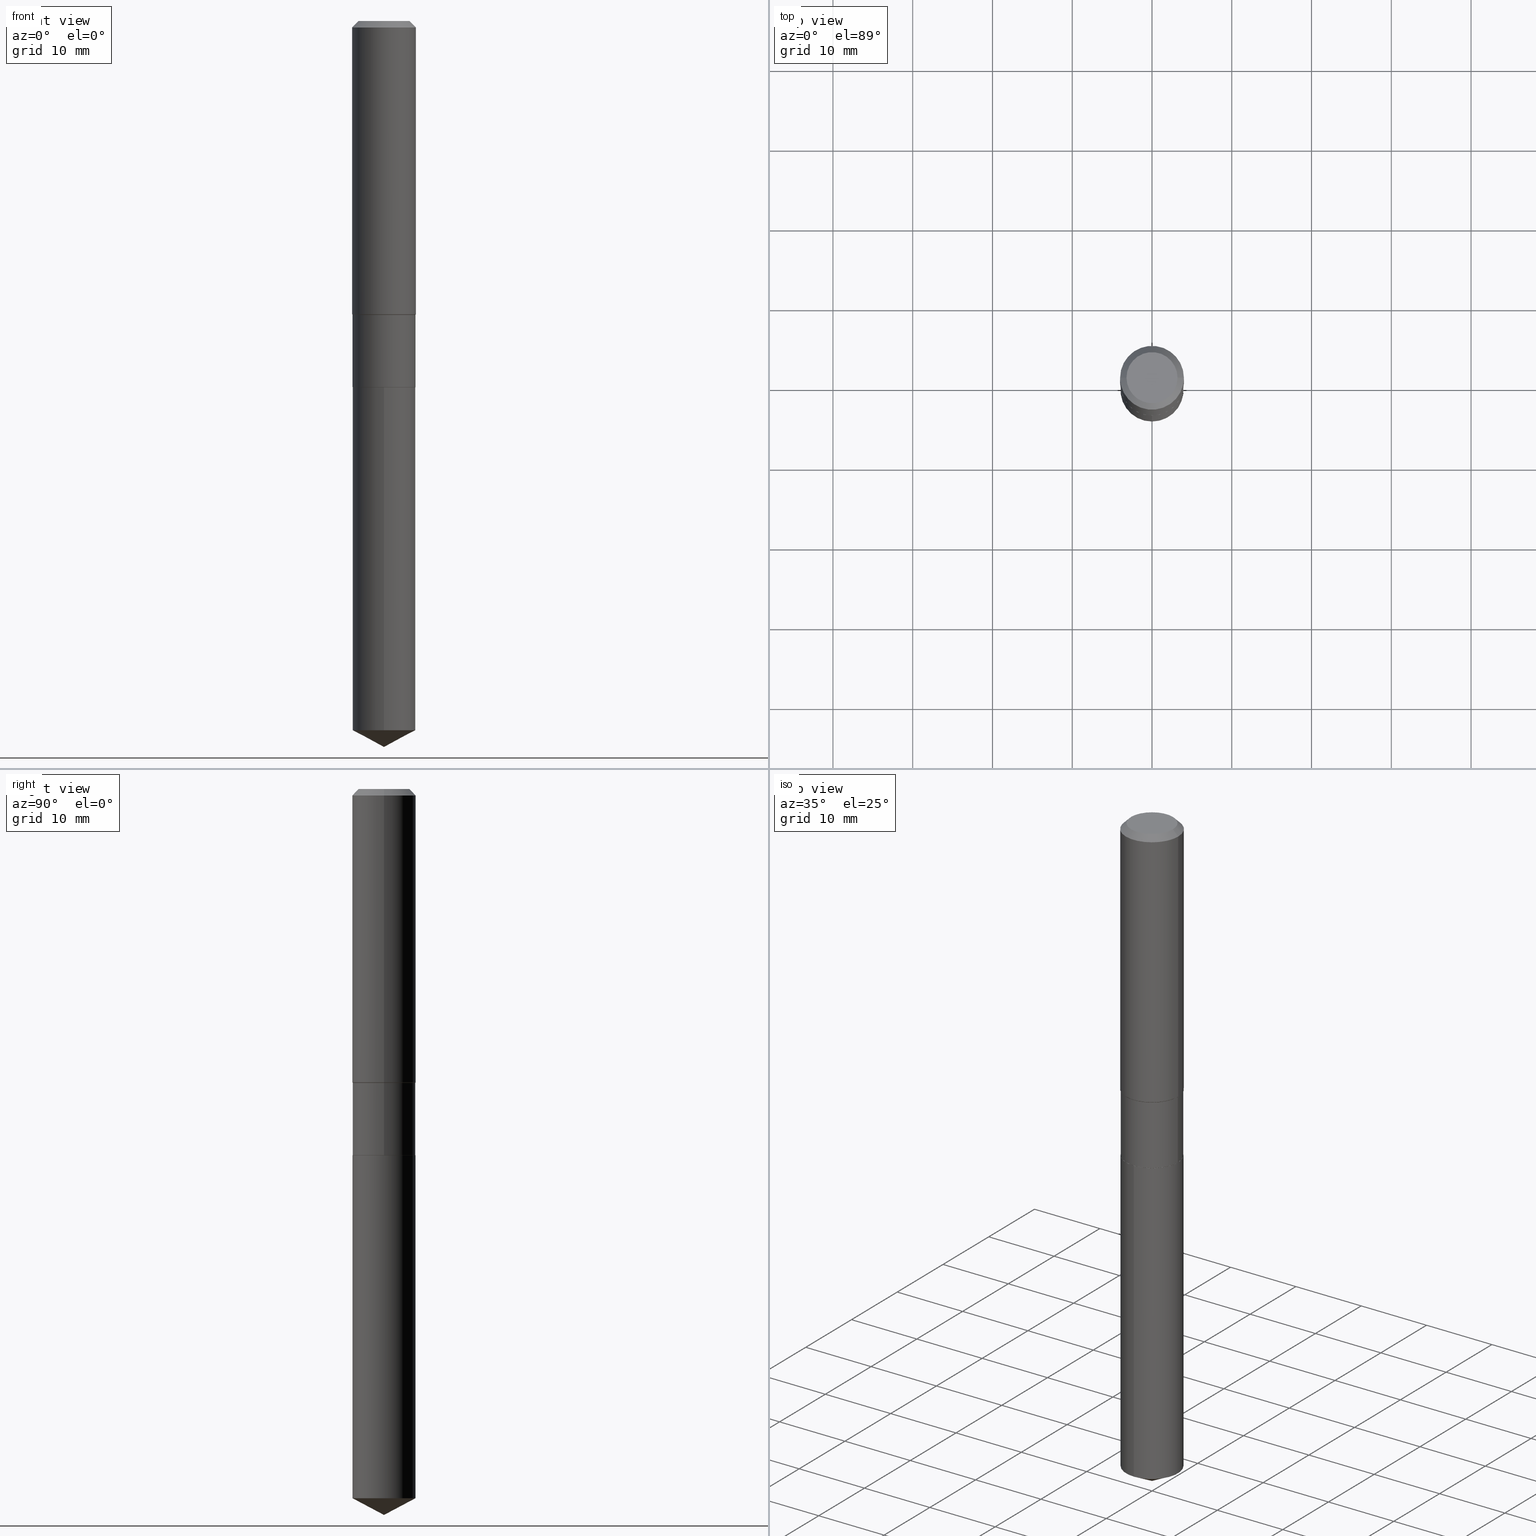
[diagram: canonical four-view strip — front | top / right | iso, engineering-drawing reading convention]
A machine part, canonical four-view strip (front | top / right | iso — engineering-drawing reading convention). The complete STEP part file that produces these views, byte-faithful:
ISO-10303-21;
HEADER;
FILE_DESCRIPTION (( 'STEP AP203' ),
    '1' );
FILE_NAME ('65209.STEP',
    '2024-04-24T21:25:03',
    ( '' ),
    ( '' ),
    'SwSTEP 2.0',
    'SolidWorks 2023',
    '' );
FILE_SCHEMA (( 'CONFIG_CONTROL_DESIGN' ));
ENDSEC;

DATA;
#1 = MANIFOLD_SOLID_BREP ( 'Body-Move/Copy2[1]', #215 ) ;
#2 = APPROVAL_DATE_TIME ( #241, #367 ) ;
#3 = DIRECTION ( 'NONE',  ( 1.000000000000000000, -6.982962677686268288E-15, 4.876176775795936353E-29 ) ) ;
#4 = CIRCLE ( 'NONE', #63, 0.1554999999999999993 ) ;
#5 = SECURITY_CLASSIFICATION ( '', '', #118 ) ;
#6 = VERTEX_POINT ( 'NONE', #337 ) ;
#7 = DIRECTION ( 'NONE',  ( -2.445468806185136597E-29, 3.491481338843145583E-15, 1.000000000000000000 ) ) ;
#8 = EDGE_CURVE ( 'NONE', #34, #35, #293, .T. ) ;
#9 = APPROVAL_STATUS ( 'not_yet_approved' ) ;
#10 = PLANE ( 'NONE',  #364 ) ;
#11 = DIRECTION ( 'NONE',  ( -2.445434489770321491E-29, 3.491530481902329465E-15, 1.000000000000000000 ) ) ;
#12 = DIRECTION ( 'NONE',  ( -6.982962677686267499E-15, -1.000000000000000000, 3.541896320645578618E-15 ) ) ;
#13 = DIRECTION ( 'NONE',  ( -0.7071067811865595631, 7.493145998870398336E-15, 0.7071067811865354713 ) ) ;
#14 = CIRCLE ( 'NONE', #283, 0.1575000000000001676 ) ;
#15 = DATE_AND_TIME ( #388, #252 ) ;
#16 = CARTESIAN_POINT ( 'NONE',  ( -1.085850696380170092E-15, -0.1555000000000062998, -1.807099999999999707 ) ) ;
#17 = DIRECTION ( 'NONE',  ( -2.445434489770321491E-29, 3.491530481902329860E-15, 1.000000000000000000 ) ) ;
#18 = CARTESIAN_POINT ( 'NONE',  ( 0.000000000000000000, 0.000000000000000000, 0.000000000000000000 ) ) ;
#19 = DIRECTION ( 'NONE',  ( -6.982962677686265133E-15, -1.000000000000000000, 3.513630860018345064E-15 ) ) ;
#20 = DIRECTION ( 'NONE',  ( -2.445468806185136597E-29, 3.491481338843145583E-15, 1.000000000000000000 ) ) ;
#21 = CARTESIAN_POINT ( 'NONE',  ( 0.1575000000000000011, -1.190510096822576026E-15, -0.03150000000000019451 ) ) ;
#22 = DIRECTION ( 'NONE',  ( -2.445468806185136597E-29, 3.491481338843145583E-15, 1.000000000000000000 ) ) ;
#23 = CYLINDRICAL_SURFACE ( 'NONE', #138, 0.1554999999999999993 ) ;
#24 = VECTOR ( 'NONE', #320, 39.37007874015748854 ) ;
#25 = CC_DESIGN_APPROVAL ( #351, ( #392 ) ) ;
#26 = DIRECTION ( 'NONE',  ( -2.445468806185136597E-29, 3.491481338843145583E-15, 1.000000000000000000 ) ) ;
#27 = ORIENTED_EDGE ( 'NONE', *, *, #166, .T. ) ;
#28 = EDGE_LOOP ( 'NONE', ( #179, #408, #439, #221 ) ) ;
#29 = DIRECTION ( 'NONE',  ( -2.445468806185136597E-29, 3.491481338843145583E-15, 1.000000000000000000 ) ) ;
#30 = AXIS2_PLACEMENT_3D ( 'NONE', #468, #275, #213 ) ;
#31 = VECTOR ( 'NONE', #309, 39.37007874015748143 ) ;
#32 = ORIENTED_EDGE ( 'NONE', *, *, #329, .T. ) ;
#33 = ADVANCED_FACE ( 'NONE', ( #264 ), #10, .F. ) ;
#34 = VERTEX_POINT ( 'NONE', #456 ) ;
#35 = VERTEX_POINT ( 'NONE', #410 ) ;
#36 = DIRECTION ( 'NONE',  ( -2.445468806185136597E-29, 3.491481338843145583E-15, 1.000000000000000000 ) ) ;
#37 = AXIS2_PLACEMENT_3D ( 'NONE', #76, #79, #82 ) ;
#38 = DIRECTION ( 'NONE',  ( 2.438088387897960049E-29, -3.491481338843145188E-15, -1.000000000000000000 ) ) ;
#39 = ADVANCED_FACE ( 'NONE', ( #262 ), #300, .T. ) ;
#40 = MECHANICAL_CONTEXT ( 'NONE', #401, 'mechanical' ) ;
#41 = ORIENTED_EDGE ( 'NONE', *, *, #111, .T. ) ;
#42 = EDGE_LOOP ( 'NONE', ( #87, #107 ) ) ;
#43 = COORDINATED_UNIVERSAL_TIME_OFFSET ( 5, 0, .BEHIND. ) ;
#44 = EDGE_CURVE ( 'NONE', #35, #482, #189, .T. ) ;
#45 = ORIENTED_EDGE ( 'NONE', *, *, #248, .T. ) ;
#46 = CLOSED_SHELL ( 'NONE', ( #70, #298, #136, #93, #39, #291, #403, #321, #471, #33, #232, #83 ) ) ;
#47 = CARTESIAN_POINT ( 'NONE',  ( 7.703226739483226971E-31, -1.099816621735597538E-16, -0.03150000000000019451 ) ) ;
#48 = CONICAL_SURFACE ( 'NONE', #211, 0.1575000000000000011, 0.7853981633974450594 ) ;
#49 = PERSON_AND_ORGANIZATION ( #296, #98 ) ;
#50 = ORIENTED_EDGE ( 'NONE', *, *, #448, .F. ) ;
#51 = CARTESIAN_POINT ( 'NONE',  ( -0.1554999999999999438, -4.579237665529685647E-15, -1.449399999999999800 ) ) ;
#52 = CARTESIAN_POINT ( 'NONE',  ( 0.000000000000000000, 0.000000000000000000, 0.000000000000000000 ) ) ;
#53 = CARTESIAN_POINT ( 'NONE',  ( 1.104893954107041376E-15, 0.1554999999999877869, -3.500019183376640530 ) ) ;
#54 = PERSON_AND_ORGANIZATION_ROLE ( 'design_supplier' ) ;
#55 = LINE ( 'NONE', #478, #475 ) ;
#56 = DIRECTION ( 'NONE',  ( -6.982962677686267499E-15, -1.000000000000000000, 3.541896320645578618E-15 ) ) ;
#57 = AXIS2_PLACEMENT_3D ( 'NONE', #246, #17, #56 ) ;
#58 = APPROVAL_PERSON_ORGANIZATION ( #161, #460, #260 ) ;
#59 = PLANE ( 'NONE',  #419 ) ;
#60 = CARTESIAN_POINT ( 'NONE',  ( -0.1575000000000001676, -3.934465281019408143E-15, -1.447399999999999798 ) ) ;
#61 = DIRECTION ( 'NONE',  ( 1.000000000000000000, -6.982962677686266711E-15, 0.000000000000000000 ) ) ;
#62 = PRODUCT_DEFINITION ( 'UNKNOWN', '', #392, #487 ) ;
#63 = AXIS2_PLACEMENT_3D ( 'NONE', #306, #67, #61 ) ;
#64 = EDGE_LOOP ( 'NONE', ( #110, #27, #435, #405 ) ) ;
#65 = DIRECTION ( 'NONE',  ( 1.000000000000000000, -6.982962677686268288E-15, 4.876176775795936353E-29 ) ) ;
#66 = ORIENTED_EDGE ( 'NONE', *, *, #395, .T. ) ;
#67 = DIRECTION ( 'NONE',  ( -2.445468806185136597E-29, 3.491481338843145583E-15, 1.000000000000000000 ) ) ;
#68 = APPLICATION_PROTOCOL_DEFINITION ( 'international standard', 'config_control_design', 1994, #401 ) ;
#69 = EDGE_LOOP ( 'NONE', ( #332, #41, #162, #74 ) ) ;
#70 = ADVANCED_FACE ( 'NONE', ( #198 ), #314, .T. ) ;
#71 = CARTESIAN_POINT ( 'NONE',  ( 4.419206679657160853E-29, -6.309455927423449056E-15, -1.807100000000000151 ) ) ;
#72 = AXIS2_PLACEMENT_3D ( 'NONE', #437, #113, #259 ) ;
#73 = VERTEX_POINT ( 'NONE', #226 ) ;
#74 = ORIENTED_EDGE ( 'NONE', *, *, #148, .F. ) ;
#75 = EDGE_CURVE ( 'NONE', #157, #473, #370, .T. ) ;
#76 = CARTESIAN_POINT ( 'NONE',  ( 4.419206679657160853E-29, -6.309455927423449056E-15, -1.807100000000000151 ) ) ;
#77 = PRODUCT_DEFINITION_SHAPE ( 'NONE', 'NONE',  #62 ) ;
#78 = ADVANCED_BREP_SHAPE_REPRESENTATION ( '65209', ( #1, #481, #224 ), #151 ) ;
#79 = DIRECTION ( 'NONE',  ( -2.445468806185136597E-29, 3.491481338843145583E-15, 1.000000000000000000 ) ) ;
#80 = CIRCLE ( 'NONE', #278, 0.1554999999999999438 ) ;
#81 = SHAPE_DEFINITION_REPRESENTATION ( #77, #78 ) ;
#82 = DIRECTION ( 'NONE',  ( 1.000000000000000000, -6.982962677686263555E-15, 0.000000000000000000 ) ) ;
#83 = ADVANCED_FACE ( 'NONE', ( #374 ), #176, .T. ) ;
#84 = ORIENTED_EDGE ( 'NONE', *, *, #387, .T. ) ;
#85 = DIRECTION ( 'NONE',  ( 1.000000000000000000, -6.982962677686267499E-15, 0.000000000000000000 ) ) ;
#86 = CALENDAR_DATE ( 2024, 24, 4 ) ;
#87 = ORIENTED_EDGE ( 'NONE', *, *, #276, .T. ) ;
#88 = CIRCLE ( 'NONE', #30, 0.1554999999999999993 ) ;
#89 = DIRECTION ( 'NONE',  ( 1.000000000000000000, -6.982962677686265922E-15, 0.000000000000000000 ) ) ;
#90 = APPROVAL_STATUS ( 'not_yet_approved' ) ;
#91 = CYLINDRICAL_SURFACE ( 'NONE', #406, 0.1554999999999999993 ) ;
#92 = LINE ( 'NONE', #271, #295 ) ;
#93 = ADVANCED_FACE ( 'NONE', ( #279 ), #378, .T. ) ;
#94 = CARTESIAN_POINT ( 'NONE',  ( 0.1575000000000000011, -1.209798283909146741E-15, -0.03150000000000019451 ) ) ;
#95 = DIRECTION ( 'NONE',  ( -2.445434489770321491E-29, 3.491530481902329860E-15, 1.000000000000000000 ) ) ;
#96 = DIRECTION ( 'NONE',  ( 2.445468806185136597E-29, -3.491481338843145583E-15, -1.000000000000000000 ) ) ;
#97 = VECTOR ( 'NONE', #384, 39.37007874015748143 ) ;
#98 = ORGANIZATION ( 'UNSPECIFIED', 'UNSPECIFIED', '' ) ;
#99 = CARTESIAN_POINT ( 'NONE',  ( 3.539571550072366058E-29, -5.053570089841568113E-15, -1.447399999999999798 ) ) ;
#100 = CARTESIAN_POINT ( 'NONE',  ( -1.085850696380170092E-15, -0.1555000000000062998, -1.807099999999999707 ) ) ;
#101 = EDGE_CURVE ( 'NONE', #287, #190, #244, .T. ) ;
#102 = CARTESIAN_POINT ( 'NONE',  ( 4.419206679657160853E-29, -6.309455927423449056E-15, -1.807100000000000151 ) ) ;
#103 = VECTOR ( 'NONE', #488, 39.37007874015748143 ) ;
#104 = EDGE_LOOP ( 'NONE', ( #436, #363, #257, #147 ) ) ;
#105 = ORIENTED_EDGE ( 'NONE', *, *, #361, .T. ) ;
#106 = DIRECTION ( 'NONE',  ( 1.000000000000000000, 0.000000000000000000, 0.000000000000000000 ) ) ;
#107 = ORIENTED_EDGE ( 'NONE', *, *, #121, .T. ) ;
#108 = CIRCLE ( 'NONE', #142, 0.1575000000000001676 ) ;
#109 = AXIS2_PLACEMENT_3D ( 'NONE', #273, #308, #423 ) ;
#110 = ORIENTED_EDGE ( 'NONE', *, *, #164, .F. ) ;
#111 = EDGE_CURVE ( 'NONE', #35, #157, #288, .T. ) ;
#112 = ORIENTED_EDGE ( 'NONE', *, *, #375, .T. ) ;
#113 = DIRECTION ( 'NONE',  ( -2.445434489770321491E-29, 3.491530481902329860E-15, 1.000000000000000000 ) ) ;
#114 = CARTESIAN_POINT ( 'NONE',  ( -0.1554999999999999438, 1.104893954106955390E-15, -7.648944065346376022E-30 ) ) ;
#115 = APPROVAL_STATUS ( 'not_yet_approved' ) ;
#116 = DIRECTION ( 'NONE',  ( -0.7071067811866199593, 7.493145998870616062E-15, 0.7071067811864750752 ) ) ;
#117 = VECTOR ( 'NONE', #13, 39.37007874015748143 ) ;
#118 = SECURITY_CLASSIFICATION_LEVEL ( 'unclassified' ) ;
#119 = EDGE_LOOP ( 'NONE', ( #66, #458, #373, #303 ) ) ;
#120 = CARTESIAN_POINT ( 'NONE',  ( -0.1554999999999999438, -3.955659098412298540E-15, -1.449399999999999800 ) ) ;
#121 = EDGE_CURVE ( 'NONE', #73, #282, #88, .T. ) ;
#122 = EDGE_LOOP ( 'NONE', ( #146, #45, #256, #144 ) ) ;
#123 = CARTESIAN_POINT ( 'NONE',  ( 7.703226739483226971E-31, -1.099816621735597538E-16, -0.03150000000000019451 ) ) ;
#124 = CALENDAR_DATE ( 2024, 24, 4 ) ;
#125 = CARTESIAN_POINT ( 'NONE',  ( -0.1549999999999999989, -5.208114686995293579E-15, -1.807100000000000151 ) ) ;
#126 = LINE ( 'NONE', #267, #97 ) ;
#127 = CC_DESIGN_SECURITY_CLASSIFICATION ( #5, ( #392 ) ) ;
#128 = COORDINATED_UNIVERSAL_TIME_OFFSET ( 5, 0, .BEHIND. ) ;
#129 = LINE ( 'NONE', #16, #158 ) ;
#130 = EDGE_CURVE ( 'NONE', #219, #415, #55, .T. ) ;
#131 = DIRECTION ( 'NONE',  ( -6.982962677686265133E-15, -1.000000000000000000, 3.513630860018345064E-15 ) ) ;
#132 = FACE_OUTER_BOUND ( 'NONE', #328, .T. ) ;
#133 = CARTESIAN_POINT ( 'NONE',  ( 7.703226739483226971E-31, -1.099816621735597538E-16, -0.03150000000000019451 ) ) ;
#134 = DIRECTION ( 'NONE',  ( -2.445468806185136597E-29, 3.491481338843145583E-15, 1.000000000000000000 ) ) ;
#135 = CYLINDRICAL_SURFACE ( 'NONE', #294, 0.1575000000000000844 ) ;
#136 = ADVANCED_FACE ( 'NONE', ( #132 ), #135, .T. ) ;
#137 = AXIS2_PLACEMENT_3D ( 'NONE', #266, #453, #3 ) ;
#138 = AXIS2_PLACEMENT_3D ( 'NONE', #357, #140, #427 ) ;
#139 = DIRECTION ( 'NONE',  ( -2.445468806185136597E-29, 3.491481338843145583E-15, 1.000000000000000000 ) ) ;
#140 = DIRECTION ( 'NONE',  ( -2.445434489770321491E-29, 3.491530481902329860E-15, 1.000000000000000000 ) ) ;
#141 = ORIENTED_EDGE ( 'NONE', *, *, #375, .F. ) ;
#142 = AXIS2_PLACEMENT_3D ( 'NONE', #99, #167, #349 ) ;
#143 = ADVANCED_FACE ( 'NONE', ( #352 ), #430, .F. ) ;
#144 = ORIENTED_EDGE ( 'NONE', *, *, #111, .F. ) ;
#145 = DIRECTION ( 'NONE',  ( 1.000000000000000000, -6.982962677686269077E-15, 0.000000000000000000 ) ) ;
#146 = ORIENTED_EDGE ( 'NONE', *, *, #8, .F. ) ;
#147 = ORIENTED_EDGE ( 'NONE', *, *, #75, .F. ) ;
#148 = EDGE_CURVE ( 'NONE', #482, #473, #80, .T. ) ;
#149 = AXIS2_PLACEMENT_3D ( 'NONE', #102, #277, #174 ) ;
#150 = CIRCLE ( 'NONE', #318, 0.1554999999999999993 ) ;
#151 =( GEOMETRIC_REPRESENTATION_CONTEXT ( 3 ) GLOBAL_UNCERTAINTY_ASSIGNED_CONTEXT ( ( #469 ) ) GLOBAL_UNIT_ASSIGNED_CONTEXT ( ( #281, #228, #323 ) ) REPRESENTATION_CONTEXT ( 'NONE', 'WORKASPACE' ) );
#152 = ORIENTED_EDGE ( 'NONE', *, *, #191, .T. ) ;
#153 = ORIENTED_EDGE ( 'NONE', *, *, #336, .T. ) ;
#154 = EDGE_LOOP ( 'NONE', ( #192, #285 ) ) ;
#155 = DATE_AND_TIME ( #334, #319 ) ;
#156 = ADVANCED_FACE ( 'NONE', ( #242 ), #348, .T. ) ;
#157 = VERTEX_POINT ( 'NONE', #428 ) ;
#158 = VECTOR ( 'NONE', #355, 39.37007874015748143 ) ;
#159 = ORIENTED_EDGE ( 'NONE', *, *, #101, .T. ) ;
#160 = FACE_OUTER_BOUND ( 'NONE', #404, .T. ) ;
#161 = PERSON_AND_ORGANIZATION ( #296, #98 ) ;
#162 = ORIENTED_EDGE ( 'NONE', *, *, #75, .T. ) ;
#163 = DIRECTION ( 'NONE',  ( 0.7071067811865452413, -7.319954787623248157E-15, -0.7071067811865497932 ) ) ;
#164 = EDGE_CURVE ( 'NONE', #322, #415, #239, .T. ) ;
#165 = DATE_AND_TIME ( #86, #261 ) ;
#166 = EDGE_CURVE ( 'NONE', #322, #6, #108, .T. ) ;
#167 = DIRECTION ( 'NONE',  ( -2.445468806185136597E-29, 3.491481338843145583E-15, 1.000000000000000000 ) ) ;
#168 = DIRECTION ( 'NONE',  ( -2.445468806185136597E-29, 3.491481338843145583E-15, 1.000000000000000000 ) ) ;
#169 = CIRCLE ( 'NONE', #223, 0.1575000000000000011 ) ;
#170 = LOCAL_TIME ( 17, 25, 3.000000000000000000, #227 ) ;
#171 = PERSON_AND_ORGANIZATION ( #296, #98 ) ;
#172 = CARTESIAN_POINT ( 'NONE',  ( 0.1549999999999999989, -7.391815142464819923E-15, -1.807100000000000151 ) ) ;
#173 = LINE ( 'NONE', #457, #31 ) ;
#174 = DIRECTION ( 'NONE',  ( 6.982962677686265922E-15, 1.000000000000000000, -3.491530481902329465E-15 ) ) ;
#175 = DIRECTION ( 'NONE',  ( 1.000000000000000000, -6.982962677686269077E-15, 0.000000000000000000 ) ) ;
#176 = CONICAL_SURFACE ( 'NONE', #245, 0.1549999999999999989, 0.7853981633975507526 ) ;
#177 = APPROVAL_PERSON_ORGANIZATION ( #346, #351, #422 ) ;
#178 = VERTEX_POINT ( 'NONE', #172 ) ;
#179 = ORIENTED_EDGE ( 'NONE', *, *, #361, .F. ) ;
#180 = VECTOR ( 'NONE', #418, 39.37007874015748143 ) ;
#181 = DIRECTION ( 'NONE',  ( 1.000000000000000000, -6.982962677686266711E-15, 0.000000000000000000 ) ) ;
#182 = CIRCLE ( 'NONE', #450, 0.1260000000000000009 ) ;
#183 = CONICAL_SURFACE ( 'NONE', #236, 0.1575000000000000011, 0.7853981633974450594 ) ;
#184 = EDGE_LOOP ( 'NONE', ( #84, #376, #360, #477 ) ) ;
#185 = EDGE_CURVE ( 'NONE', #157, #35, #4, .T. ) ;
#186 = VERTEX_POINT ( 'NONE', #362 ) ;
#187 = EDGE_LOOP ( 'NONE', ( #317, #105, #141, #333 ) ) ;
#188 = CIRCLE ( 'NONE', #400, 0.1549999999999999989 ) ;
#189 = LINE ( 'NONE', #114, #180 ) ;
#190 = VERTEX_POINT ( 'NONE', #209 ) ;
#191 = EDGE_CURVE ( 'NONE', #190, #282, #129, .T. ) ;
#192 = ORIENTED_EDGE ( 'NONE', *, *, #395, .F. ) ;
#193 = COORDINATED_UNIVERSAL_TIME_OFFSET ( 5, 0, .BEHIND. ) ;
#194 = CARTESIAN_POINT ( 'NONE',  ( -4.719860820353100843E-47, 6.738710358733633822E-33, 1.930043355456229866E-18 ) ) ;
#195 = AXIS2_PLACEMENT_3D ( 'NONE', #467, #421, #12 ) ;
#196 = DIRECTION ( 'NONE',  ( -1.000000000000000000, 6.982962677686265922E-15, 0.000000000000000000 ) ) ;
#197 = DATE_TIME_ROLE ( 'creation_date' ) ;
#198 = FACE_OUTER_BOUND ( 'NONE', #119, .T. ) ;
#199 = LINE ( 'NONE', #207, #379 ) ;
#200 = CC_DESIGN_PERSON_AND_ORGANIZATION_ASSIGNMENT ( #272, #417, ( #62 ) ) ;
#201 = PERSON_AND_ORGANIZATION ( #296, #98 ) ;
#202 = CARTESIAN_POINT ( 'NONE',  ( 3.544462487684736704E-29, -5.060553052519254127E-15, -1.449399999999999800 ) ) ;
#203 = DIRECTION ( 'NONE',  ( 1.000000000000000000, -6.982962677686269077E-15, 0.000000000000000000 ) ) ;
#204 = CONICAL_SURFACE ( 'NONE', #476, 0.1554999999999999438, 0.7853981633974653764 ) ;
#205 = CC_DESIGN_APPROVAL ( #367, ( #62 ) ) ;
#206 = DIRECTION ( 'NONE',  ( 1.000000000000000000, -6.982962677686267499E-15, 4.876176775795936353E-29 ) ) ;
#207 = CARTESIAN_POINT ( 'NONE',  ( 1.104893954106999566E-15, 0.1554999999999936711, -1.807100000000000817 ) ) ;
#208 = EDGE_CURVE ( 'NONE', #219, #186, #335, .T. ) ;
#209 = CARTESIAN_POINT ( 'NONE',  ( -1.085850696380128874E-15, -0.1555000000000122118, -3.500019183376639642 ) ) ;
#210 = FACE_OUTER_BOUND ( 'NONE', #69, .T. ) ;
#211 = AXIS2_PLACEMENT_3D ( 'NONE', #280, #96, #466 ) ;
#212 = ORIENTED_EDGE ( 'NONE', *, *, #121, .F. ) ;
#213 = DIRECTION ( 'NONE',  ( -6.982962677686265133E-15, -1.000000000000000000, 3.513630860018345064E-15 ) ) ;
#214 = ORIENTED_EDGE ( 'NONE', *, *, #101, .F. ) ;
#215 = CLOSED_SHELL ( 'NONE', ( #286, #156, #407, #217, #143 ) ) ;
#216 = AXIS2_PLACEMENT_3D ( 'NONE', #446, #36, #145 ) ;
#217 = ADVANCED_FACE ( 'NONE', ( #389 ), #91, .T. ) ;
#218 = LOCAL_TIME ( 17, 25, 3.000000000000000000, #128 ) ;
#219 = VERTEX_POINT ( 'NONE', #425 ) ;
#220 = EDGE_LOOP ( 'NONE', ( #50, #32, #153, #434 ) ) ;
#221 = ORIENTED_EDGE ( 'NONE', *, *, #166, .F. ) ;
#222 = DIRECTION ( 'NONE',  ( 1.000000000000000000, -6.982962677686263555E-15, 0.000000000000000000 ) ) ;
#223 = AXIS2_PLACEMENT_3D ( 'NONE', #133, #168, #89 ) ;
#224 = AXIS2_PLACEMENT_3D ( 'NONE', #327, #484, #106 ) ;
#225 = DIRECTION ( 'NONE',  ( 1.000000000000000000, -6.982962677686263555E-15, 0.000000000000000000 ) ) ;
#226 = CARTESIAN_POINT ( 'NONE',  ( 1.104893954107041376E-15, 0.1554999999999936711, -1.807100000000000817 ) ) ;
#227 = COORDINATED_UNIVERSAL_TIME_OFFSET ( 5, 0, .BEHIND. ) ;
#228 =( NAMED_UNIT ( * ) PLANE_ANGLE_UNIT ( ) SI_UNIT ( $, .RADIAN. ) );
#229 = VERTEX_POINT ( 'NONE', #94 ) ;
#230 = CARTESIAN_POINT ( 'NONE',  ( 8.559129639080203787E-29, -1.222033485958018739E-14, -3.500019183376640086 ) ) ;
#231 = AXIS2_PLACEMENT_3D ( 'NONE', #313, #22, #175 ) ;
#232 = ADVANCED_FACE ( 'NONE', ( #391 ), #59, .F. ) ;
#233 = AXIS2_PLACEMENT_3D ( 'NONE', #237, #95, #131 ) ;
#234 = ORIENTED_EDGE ( 'NONE', *, *, #448, .T. ) ;
#235 = EDGE_CURVE ( 'NONE', #473, #482, #289, .T. ) ;
#236 = AXIS2_PLACEMENT_3D ( 'NONE', #47, #341, #196 ) ;
#237 = CARTESIAN_POINT ( 'NONE',  ( 8.559129639080203787E-29, -1.222033485958018739E-14, -3.500019183376640086 ) ) ;
#238 = PERSON_AND_ORGANIZATION_ROLE ( 'creator' ) ;
#239 = LINE ( 'NONE', #254, #433 ) ;
#240 = DIRECTION ( 'NONE',  ( 1.000000000000000000, -6.982962677686265922E-15, 0.000000000000000000 ) ) ;
#241 = DATE_AND_TIME ( #339, #170 ) ;
#242 = FACE_OUTER_BOUND ( 'NONE', #253, .T. ) ;
#243 = CARTESIAN_POINT ( 'NONE',  ( 3.539571550072366058E-29, -5.053570089841568113E-15, -1.447399999999999798 ) ) ;
#244 = LINE ( 'NONE', #461, #24 ) ;
#245 = AXIS2_PLACEMENT_3D ( 'NONE', #292, #258, #225 ) ;
#246 = CARTESIAN_POINT ( 'NONE',  ( -8.751562825646105489E-28, 1.249528125450655113E-13, 35.78737874015747877 ) ) ;
#247 = CONICAL_SURFACE ( 'NONE', #57, 74.04434902938317009, 1.082104136236484493 ) ;
#248 = EDGE_CURVE ( 'NONE', #34, #178, #188, .T. ) ;
#249 = CARTESIAN_POINT ( 'NONE',  ( 8.761258146500130855E-29, -1.250910625751147530E-14, -3.582699999999999996 ) ) ;
#250 = CARTESIAN_POINT ( 'NONE',  ( 4.417983945254068051E-29, -6.307710186754027552E-15, -1.806600000000000428 ) ) ;
#251 = CIRCLE ( 'NONE', #72, 0.1554999999999999993 ) ;
#252 = LOCAL_TIME ( 17, 25, 3.000000000000000000, #193 ) ;
#253 = EDGE_LOOP ( 'NONE', ( #214, #383, #340 ) ) ;
#254 = CARTESIAN_POINT ( 'NONE',  ( -0.1575000000000000844, 1.119104808822158392E-15, -7.747322767151481189E-30 ) ) ;
#255 = ORIENTED_EDGE ( 'NONE', *, *, #345, .T. ) ;
#256 = ORIENTED_EDGE ( 'NONE', *, *, #479, .T. ) ;
#257 = ORIENTED_EDGE ( 'NONE', *, *, #235, .F. ) ;
#258 = DIRECTION ( 'NONE',  ( -2.445468806185136597E-29, 3.491481338843145583E-15, 1.000000000000000000 ) ) ;
#259 = DIRECTION ( 'NONE',  ( -6.982962677686265133E-15, -1.000000000000000000, 3.513630860018345064E-15 ) ) ;
#260 = APPROVAL_ROLE ( '' ) ;
#261 = LOCAL_TIME ( 17, 25, 3.000000000000000000, #43 ) ;
#262 = FACE_OUTER_BOUND ( 'NONE', #104, .T. ) ;
#263 = CC_DESIGN_PERSON_AND_ORGANIZATION_ASSIGNMENT ( #447, #342, ( #5 ) ) ;
#264 = FACE_OUTER_BOUND ( 'NONE', #325, .T. ) ;
#265 = DIRECTION ( 'NONE',  ( 1.000000000000000000, -6.982962677686263555E-15, 0.000000000000000000 ) ) ;
#266 = CARTESIAN_POINT ( 'NONE',  ( 0.000000000000000000, 0.000000000000000000, 0.000000000000000000 ) ) ;
#267 = CARTESIAN_POINT ( 'NONE',  ( 0.1549999999999999989, -7.391815142464819923E-15, -1.807100000000000151 ) ) ;
#268 = APPROVAL_ROLE ( '' ) ;
#269 = AXIS2_PLACEMENT_3D ( 'NONE', #18, #134, #394 ) ;
#270 = CARTESIAN_POINT ( 'NONE',  ( 3.544462487684736704E-29, -5.060553052519254127E-15, -1.449399999999999800 ) ) ;
#271 = CARTESIAN_POINT ( 'NONE',  ( 8.761383260451562121E-29, -1.250892864466697425E-14, -3.582699999999999996 ) ) ;
#272 = PERSON_AND_ORGANIZATION ( #296, #98 ) ;
#273 = CARTESIAN_POINT ( 'NONE',  ( -9.439721640706201686E-47, 1.347742071746726764E-32, 3.860086710912459732E-18 ) ) ;
#274 = DIRECTION ( 'NONE',  ( 1.000000000000000000, -6.982962677686269077E-15, 0.000000000000000000 ) ) ;
#275 = DIRECTION ( 'NONE',  ( -2.445434489770321491E-29, 3.491530481902329860E-15, 1.000000000000000000 ) ) ;
#276 = EDGE_CURVE ( 'NONE', #282, #73, #251, .T. ) ;
#277 = DIRECTION ( 'NONE',  ( 2.445434489770321491E-29, -3.491530481902329465E-15, -1.000000000000000000 ) ) ;
#278 = AXIS2_PLACEMENT_3D ( 'NONE', #270, #343, #203 ) ;
#279 = FACE_OUTER_BOUND ( 'NONE', #187, .T. ) ;
#280 = CARTESIAN_POINT ( 'NONE',  ( 7.703226739483226971E-31, -1.099816621735597538E-16, -0.03150000000000019451 ) ) ;
#281 =( CONVERSION_BASED_UNIT ( 'INCH', #472 ) LENGTH_UNIT ( ) NAMED_UNIT ( #444 ) );
#282 = VERTEX_POINT ( 'NONE', #100 ) ;
#283 = AXIS2_PLACEMENT_3D ( 'NONE', #243, #462, #85 ) ;
#284 = ORIENTED_EDGE ( 'NONE', *, *, #329, .F. ) ;
#285 = ORIENTED_EDGE ( 'NONE', *, *, #248, .F. ) ;
#286 = ADVANCED_FACE ( 'NONE', ( #398 ), #23, .T. ) ;
#287 = VERTEX_POINT ( 'NONE', #249 ) ;
#288 = CIRCLE ( 'NONE', #371, 0.1554999999999999993 ) ;
#289 = CIRCLE ( 'NONE', #216, 0.1554999999999999438 ) ;
#290 = ORIENTED_EDGE ( 'NONE', *, *, #396, .F. ) ;
#291 = ADVANCED_FACE ( 'NONE', ( #210 ), #310, .T. ) ;
#292 = CARTESIAN_POINT ( 'NONE',  ( 4.419206679657160853E-29, -6.309455927423449056E-15, -1.807100000000000151 ) ) ;
#293 = LINE ( 'NONE', #125, #347 ) ;
#294 = AXIS2_PLACEMENT_3D ( 'NONE', #52, #139, #206 ) ;
#295 = VECTOR ( 'NONE', #390, 39.37007874015748143 ) ;
#296 = PERSON ( 'UNSPECIFIED', 'UNSPECIFIED', 'UNSPECIFIED', ('UNSPECIFIED'), ('UNSPECIFIED'), ('UNSPECIFIED') ) ;
#297 = ORIENTED_EDGE ( 'NONE', *, *, #429, .F. ) ;
#298 = ADVANCED_FACE ( 'NONE', ( #470 ), #48, .T. ) ;
#299 = PERSON_AND_ORGANIZATION ( #296, #98 ) ;
#300 = CYLINDRICAL_SURFACE ( 'NONE', #137, 0.1554999999999999438 ) ;
#301 = DIRECTION ( 'NONE',  ( -2.445434489770321491E-29, 3.491530481902329860E-15, 1.000000000000000000 ) ) ;
#302 = APPROVAL_DATE_TIME ( #15, #351 ) ;
#303 = ORIENTED_EDGE ( 'NONE', *, *, #479, .F. ) ;
#304 = DIRECTION ( 'NONE',  ( -2.445468806185136597E-29, 3.491481338843145583E-15, 1.000000000000000000 ) ) ;
#305 = DATE_TIME_ROLE ( 'classification_date' ) ;
#306 = CARTESIAN_POINT ( 'NONE',  ( 4.417983945254068051E-29, -6.307710186754027552E-15, -1.806600000000000428 ) ) ;
#307 = LINE ( 'NONE', #120, #117 ) ;
#308 = DIRECTION ( 'NONE',  ( -2.445468806185136597E-29, 3.491481338843145583E-15, 1.000000000000000000 ) ) ;
#309 = DIRECTION ( 'NONE',  ( 0.7071067811865595631, -2.468850131082382884E-15, 0.7071067811865354713 ) ) ;
#310 = CYLINDRICAL_SURFACE ( 'NONE', #486, 0.1554999999999999438 ) ;
#311 = CC_DESIGN_PERSON_AND_ORGANIZATION_ASSIGNMENT ( #171, #54, ( #392 ) ) ;
#312 = DIRECTION ( 'NONE',  ( -2.445434489770321491E-29, 3.491530481902329860E-15, 1.000000000000000000 ) ) ;
#313 = CARTESIAN_POINT ( 'NONE',  ( 3.544462487684736704E-29, -5.060553052519254127E-15, -1.449399999999999800 ) ) ;
#314 = CONICAL_SURFACE ( 'NONE', #37, 0.1549999999999999989, 0.7853981633975507526 ) ;
#315 = VECTOR ( 'NONE', #393, 39.37007874015748143 ) ;
#316 = CC_DESIGN_PERSON_AND_ORGANIZATION_ASSIGNMENT ( #49, #380, ( #438 ) ) ;
#317 = ORIENTED_EDGE ( 'NONE', *, *, #235, .T. ) ;
#318 = AXIS2_PLACEMENT_3D ( 'NONE', #230, #301, #424 ) ;
#319 = LOCAL_TIME ( 17, 25, 3.000000000000000000, #452 ) ;
#320 = DIRECTION ( 'NONE',  ( -6.165590087286827352E-15, -0.8829475928589254341, 0.4694715627858938034 ) ) ;
#321 = ADVANCED_FACE ( 'NONE', ( #431 ), #359, .T. ) ;
#322 = VERTEX_POINT ( 'NONE', #60 ) ;
#323 =( NAMED_UNIT ( * ) SI_UNIT ( $, .STERADIAN. ) SOLID_ANGLE_UNIT ( ) );
#324 = CC_DESIGN_DATE_AND_TIME_ASSIGNMENT ( #165, #305, ( #5 ) ) ;
#325 = EDGE_LOOP ( 'NONE', ( #480, #234 ) ) ;
#326 = DIRECTION ( 'NONE',  ( -2.438088387897960049E-29, 3.491481338843145188E-15, 1.000000000000000000 ) ) ;
#327 = CARTESIAN_POINT ( 'NONE',  ( 0.000000000000000000, 0.000000000000000000, 0.000000000000000000 ) ) ;
#328 = EDGE_LOOP ( 'NONE', ( #112, #414, #368, #402 ) ) ;
#329 = EDGE_CURVE ( 'NONE', #186, #229, #354, .T. ) ;
#330 = EDGE_CURVE ( 'NONE', #6, #229, #454, .T. ) ;
#331 = CARTESIAN_POINT ( 'NONE',  ( 0.1554999999999999438, -1.085850696380214268E-15, 7.582454886362678420E-30 ) ) ;
#332 = ORIENTED_EDGE ( 'NONE', *, *, #44, .F. ) ;
#333 = ORIENTED_EDGE ( 'NONE', *, *, #465, .F. ) ;
#334 = CALENDAR_DATE ( 2024, 24, 4 ) ;
#335 = CIRCLE ( 'NONE', #109, 0.1260000000000000009 ) ;
#336 = EDGE_CURVE ( 'NONE', #229, #415, #440, .T. ) ;
#337 = CARTESIAN_POINT ( 'NONE',  ( 0.1575000000000001676, -6.153386711577156382E-15, -1.447399999999999798 ) ) ;
#338 = DIRECTION ( 'NONE',  ( -2.445468806185136597E-29, 3.491481338843145583E-15, 1.000000000000000000 ) ) ;
#339 = CALENDAR_DATE ( 2024, 24, 4 ) ;
#340 = ORIENTED_EDGE ( 'NONE', *, *, #387, .F. ) ;
#341 = DIRECTION ( 'NONE',  ( 2.445468806185136597E-29, -3.491481338843145583E-15, -1.000000000000000000 ) ) ;
#342 = PERSON_AND_ORGANIZATION_ROLE ( 'classification_officer' ) ;
#343 = DIRECTION ( 'NONE',  ( -2.445468806185136597E-29, 3.491481338843145583E-15, 1.000000000000000000 ) ) ;
#344 = FACE_OUTER_BOUND ( 'NONE', #445, .T. ) ;
#345 = EDGE_CURVE ( 'NONE', #415, #229, #169, .T. ) ;
#346 = PERSON_AND_ORGANIZATION ( #296, #98 ) ;
#347 = VECTOR ( 'NONE', #116, 39.37007874015748143 ) ;
#348 = CONICAL_SURFACE ( 'NONE', #195, 74.04434902938317009, 1.082104136236484493 ) ;
#349 = DIRECTION ( 'NONE',  ( 1.000000000000000000, -6.982962677686267499E-15, 0.000000000000000000 ) ) ;
#350 = FACE_OUTER_BOUND ( 'NONE', #28, .T. ) ;
#351 = APPROVAL ( #9, 'UNSPECIFIED' ) ;
#352 = FACE_OUTER_BOUND ( 'NONE', #42, .T. ) ;
#353 = CARTESIAN_POINT ( 'NONE',  ( 4.419206679657160853E-29, -6.309455927423449056E-15, -1.807100000000000151 ) ) ;
#354 = LINE ( 'NONE', #21, #356 ) ;
#355 = DIRECTION ( 'NONE',  ( -2.445434489770321491E-29, 3.491530481902329465E-15, 1.000000000000000000 ) ) ;
#356 = VECTOR ( 'NONE', #163, 39.37007874015748143 ) ;
#357 = CARTESIAN_POINT ( 'NONE',  ( 4.419206679657160853E-29, -6.309455927423449056E-15, -1.807100000000000151 ) ) ;
#358 = VERTEX_POINT ( 'NONE', #53 ) ;
#359 = CYLINDRICAL_SURFACE ( 'NONE', #269, 0.1575000000000000844 ) ;
#360 = ORIENTED_EDGE ( 'NONE', *, *, #276, .F. ) ;
#361 = EDGE_CURVE ( 'NONE', #482, #322, #307, .T. ) ;
#362 = CARTESIAN_POINT ( 'NONE',  ( 0.1260000000000000009, -1.027466422270894443E-15, 3.860086710919128072E-18 ) ) ;
#363 = ORIENTED_EDGE ( 'NONE', *, *, #44, .T. ) ;
#364 = AXIS2_PLACEMENT_3D ( 'NONE', #194, #38, #490 ) ;
#365 = CIRCLE ( 'NONE', #233, 0.1554999999999999993 ) ;
#366 = ORIENTED_EDGE ( 'NONE', *, *, #489, .F. ) ;
#367 = APPROVAL ( #90, 'UNSPECIFIED' ) ;
#368 = ORIENTED_EDGE ( 'NONE', *, *, #336, .F. ) ;
#369 = DIRECTION ( 'NONE',  ( 1.000000000000000000, -6.982962677686265922E-15, 4.876176775795935793E-29 ) ) ;
#370 = LINE ( 'NONE', #331, #103 ) ;
#371 = AXIS2_PLACEMENT_3D ( 'NONE', #250, #29, #181 ) ;
#372 = AXIS2_PLACEMENT_3D ( 'NONE', #123, #338, #240 ) ;
#373 = ORIENTED_EDGE ( 'NONE', *, *, #185, .F. ) ;
#374 = FACE_OUTER_BOUND ( 'NONE', #122, .T. ) ;
#375 = EDGE_CURVE ( 'NONE', #6, #322, #14, .T. ) ;
#376 = ORIENTED_EDGE ( 'NONE', *, *, #396, .T. ) ;
#377 = DIRECTION ( 'NONE',  ( 1.000000000000000000, -6.982962677686265922E-15, 4.876281427513067258E-29 ) ) ;
#378 = CONICAL_SURFACE ( 'NONE', #231, 0.1554999999999999438, 0.7853981633974653764 ) ;
#379 = VECTOR ( 'NONE', #11, 39.37007874015748143 ) ;
#380 = PERSON_AND_ORGANIZATION_ROLE ( 'design_owner' ) ;
#381 = AXIS2_PLACEMENT_3D ( 'NONE', #353, #20, #265 ) ;
#382 = PRODUCT_RELATED_PRODUCT_CATEGORY ( 'detail', '', ( #438 ) ) ;
#383 = ORIENTED_EDGE ( 'NONE', *, *, #489, .T. ) ;
#384 = DIRECTION ( 'NONE',  ( 0.7071067811866199593, -2.468850131083015945E-15, 0.7071067811864750752 ) ) ;
#385 = DIRECTION ( 'NONE',  ( -2.445468806185136877E-29, 3.491481338843145188E-15, 1.000000000000000000 ) ) ;
#386 =( LENGTH_UNIT ( ) NAMED_UNIT ( * ) SI_UNIT ( $, .METRE. ) );
#387 = EDGE_CURVE ( 'NONE', #190, #358, #365, .T. ) ;
#388 = CALENDAR_DATE ( 2024, 24, 4 ) ;
#389 = FACE_OUTER_BOUND ( 'NONE', #411, .T. ) ;
#390 = DIRECTION ( 'NONE',  ( 6.273719981627758188E-15, 0.8829475928589286537, 0.4694715627858875306 ) ) ;
#391 = FACE_OUTER_BOUND ( 'NONE', #154, .T. ) ;
#392 = PRODUCT_DEFINITION_FORMATION_WITH_SPECIFIED_SOURCE ( 'ANY', '', #438, .NOT_KNOWN. ) ;
#393 = DIRECTION ( 'NONE',  ( -2.445468806185136877E-29, 3.491481338843145188E-15, 1.000000000000000000 ) ) ;
#394 = DIRECTION ( 'NONE',  ( 1.000000000000000000, -6.982962677686267499E-15, 4.876176775795936353E-29 ) ) ;
#395 = EDGE_CURVE ( 'NONE', #178, #34, #412, .T. ) ;
#396 = EDGE_CURVE ( 'NONE', #358, #73, #199, .T. ) ;
#397 = DIRECTION ( 'NONE',  ( -0.7071067811865452413, 2.468850131082233000E-15, -0.7071067811865497932 ) ) ;
#398 = FACE_OUTER_BOUND ( 'NONE', #184, .T. ) ;
#399 = CC_DESIGN_PERSON_AND_ORGANIZATION_ASSIGNMENT ( #299, #238, ( #392 ) ) ;
#400 = AXIS2_PLACEMENT_3D ( 'NONE', #71, #443, #222 ) ;
#401 = APPLICATION_CONTEXT ( 'configuration controlled 3d designs of mechanical parts and assemblies' ) ;
#402 = ORIENTED_EDGE ( 'NONE', *, *, #330, .F. ) ;
#403 = ADVANCED_FACE ( 'NONE', ( #350 ), #204, .T. ) ;
#404 = EDGE_LOOP ( 'NONE', ( #366, #159, #297 ) ) ;
#405 = ORIENTED_EDGE ( 'NONE', *, *, #345, .F. ) ;
#406 = AXIS2_PLACEMENT_3D ( 'NONE', #463, #312, #19 ) ;
#407 = ADVANCED_FACE ( 'NONE', ( #160 ), #247, .T. ) ;
#408 = ORIENTED_EDGE ( 'NONE', *, *, #148, .T. ) ;
#409 = CC_DESIGN_DATE_AND_TIME_ASSIGNMENT ( #420, #197, ( #62 ) ) ;
#410 = CARTESIAN_POINT ( 'NONE',  ( -0.1554999999999999993, -4.579237665529685647E-15, -1.806600000000000428 ) ) ;
#411 = EDGE_LOOP ( 'NONE', ( #290, #485, #152, #212 ) ) ;
#412 = CIRCLE ( 'NONE', #381, 0.1549999999999999989 ) ;
#413 = APPLICATION_PROTOCOL_DEFINITION ( 'international standard', 'config_control_design', 1994, #474 ) ;
#414 = ORIENTED_EDGE ( 'NONE', *, *, #164, .T. ) ;
#415 = VERTEX_POINT ( 'NONE', #416 ) ;
#416 = CARTESIAN_POINT ( 'NONE',  ( -0.1575000000000000011, -1.462671067185405196E-15, -0.03150000000000019451 ) ) ;
#417 = PERSON_AND_ORGANIZATION_ROLE ( 'creator' ) ;
#418 = DIRECTION ( 'NONE',  ( -2.445468806185136877E-29, 3.491481338843145188E-15, 1.000000000000000000 ) ) ;
#419 = AXIS2_PLACEMENT_3D ( 'NONE', #483, #326, #369 ) ;
#420 = DATE_AND_TIME ( #124, #218 ) ;
#421 = DIRECTION ( 'NONE',  ( -2.445434489770321491E-29, 3.491530481902329860E-15, 1.000000000000000000 ) ) ;
#422 = APPROVAL_ROLE ( '' ) ;
#423 = DIRECTION ( 'NONE',  ( 1.000000000000000000, -6.982962677686265922E-15, 4.876281427513067258E-29 ) ) ;
#424 = DIRECTION ( 'NONE',  ( -6.982962677686265133E-15, -1.000000000000000000, 3.513630860018345064E-15 ) ) ;
#425 = CARTESIAN_POINT ( 'NONE',  ( -0.1260000000000000009, 9.348441284752484904E-16, 3.860086710906114178E-18 ) ) ;
#426 = CARTESIAN_POINT ( 'NONE',  ( 0.1575000000000000844, -1.099816621735587677E-15, 7.679978421878603638E-30 ) ) ;
#427 = DIRECTION ( 'NONE',  ( -6.982962677686265133E-15, -1.000000000000000000, 3.513630860018345064E-15 ) ) ;
#428 = CARTESIAN_POINT ( 'NONE',  ( 0.1554999999999999993, -7.393560883134242215E-15, -1.806600000000000428 ) ) ;
#429 = EDGE_CURVE ( 'NONE', #358, #190, #150, .T. ) ;
#430 = PLANE ( 'NONE',  #149 ) ;
#431 = FACE_OUTER_BOUND ( 'NONE', #64, .T. ) ;
#432 = CARTESIAN_POINT ( 'NONE',  ( 0.000000000000000000, 0.000000000000000000, 0.000000000000000000 ) ) ;
#433 = VECTOR ( 'NONE', #385, 39.37007874015748143 ) ;
#434 = ORIENTED_EDGE ( 'NONE', *, *, #130, .F. ) ;
#435 = ORIENTED_EDGE ( 'NONE', *, *, #330, .T. ) ;
#436 = ORIENTED_EDGE ( 'NONE', *, *, #185, .T. ) ;
#437 = CARTESIAN_POINT ( 'NONE',  ( 4.419206679657160853E-29, -6.309455927423449056E-15, -1.807100000000000151 ) ) ;
#438 = PRODUCT ( '65209', '65209', '', ( #40 ) ) ;
#439 = ORIENTED_EDGE ( 'NONE', *, *, #465, .T. ) ;
#440 = CIRCLE ( 'NONE', #372, 0.1575000000000000011 ) ;
#441 = APPROVAL_PERSON_ORGANIZATION ( #201, #367, #268 ) ;
#442 = ORIENTED_EDGE ( 'NONE', *, *, #208, .F. ) ;
#443 = DIRECTION ( 'NONE',  ( -2.445468806185136597E-29, 3.491481338843145583E-15, 1.000000000000000000 ) ) ;
#444 = DIMENSIONAL_EXPONENTS ( 1.000000000000000000, 0.000000000000000000, 0.000000000000000000, 0.000000000000000000, 0.000000000000000000, 0.000000000000000000, 0.000000000000000000 ) ;
#445 = EDGE_LOOP ( 'NONE', ( #284, #442, #449, #255 ) ) ;
#446 = CARTESIAN_POINT ( 'NONE',  ( 3.544462487684736704E-29, -5.060553052519254127E-15, -1.449399999999999800 ) ) ;
#447 = PERSON_AND_ORGANIZATION ( #296, #98 ) ;
#448 = EDGE_CURVE ( 'NONE', #186, #219, #182, .T. ) ;
#449 = ORIENTED_EDGE ( 'NONE', *, *, #130, .T. ) ;
#450 = AXIS2_PLACEMENT_3D ( 'NONE', #464, #304, #377 ) ;
#451 = CC_DESIGN_APPROVAL ( #460, ( #5 ) ) ;
#452 = COORDINATED_UNIVERSAL_TIME_OFFSET ( 5, 0, .BEHIND. ) ;
#453 = DIRECTION ( 'NONE',  ( -2.445468806185136597E-29, 3.491481338843145583E-15, 1.000000000000000000 ) ) ;
#454 = LINE ( 'NONE', #426, #315 ) ;
#455 = APPROVAL_DATE_TIME ( #155, #460 ) ;
#456 = CARTESIAN_POINT ( 'NONE',  ( -0.1549999999999999989, -5.205465459821182378E-15, -1.807100000000000151 ) ) ;
#457 = CARTESIAN_POINT ( 'NONE',  ( 0.1554999999999999438, -6.146403748899468790E-15, -1.449399999999999800 ) ) ;
#458 = ORIENTED_EDGE ( 'NONE', *, *, #8, .T. ) ;
#459 = CARTESIAN_POINT ( 'NONE',  ( 0.1554999999999999438, -6.146403748899468790E-15, -1.449399999999999800 ) ) ;
#460 = APPROVAL ( #115, 'UNSPECIFIED' ) ;
#461 = CARTESIAN_POINT ( 'NONE',  ( 8.761258146500130855E-29, -1.250910625751147530E-14, -3.582699999999999996 ) ) ;
#462 = DIRECTION ( 'NONE',  ( -2.445468806185136597E-29, 3.491481338843145583E-15, 1.000000000000000000 ) ) ;
#463 = CARTESIAN_POINT ( 'NONE',  ( 4.419206679657160853E-29, -6.309455927423449056E-15, -1.807100000000000151 ) ) ;
#464 = CARTESIAN_POINT ( 'NONE',  ( -9.439721640706201686E-47, 1.347742071746726764E-32, 3.860086710912459732E-18 ) ) ;
#465 = EDGE_CURVE ( 'NONE', #473, #6, #173, .T. ) ;
#466 = DIRECTION ( 'NONE',  ( -1.000000000000000000, 6.982962677686265922E-15, 0.000000000000000000 ) ) ;
#467 = CARTESIAN_POINT ( 'NONE',  ( -8.751562825646105489E-28, 1.249528125450655113E-13, 35.78737874015747877 ) ) ;
#468 = CARTESIAN_POINT ( 'NONE',  ( 4.419206679657160853E-29, -6.309455927423449056E-15, -1.807100000000000151 ) ) ;
#469 = UNCERTAINTY_MEASURE_WITH_UNIT (LENGTH_MEASURE( 1.000000000000000082E-05 ), #281, 'distance_accuracy_value', 'NONE');
#470 = FACE_OUTER_BOUND ( 'NONE', #220, .T. ) ;
#471 = ADVANCED_FACE ( 'NONE', ( #344 ), #183, .T. ) ;
#472 = LENGTH_MEASURE_WITH_UNIT ( LENGTH_MEASURE( 0.02539999999999999897 ), #386 );
#473 = VERTEX_POINT ( 'NONE', #459 ) ;
#474 = APPLICATION_CONTEXT ( 'configuration controlled 3d designs of mechanical parts and assemblies' ) ;
#475 = VECTOR ( 'NONE', #397, 39.37007874015748143 ) ;
#476 = AXIS2_PLACEMENT_3D ( 'NONE', #202, #7, #274 ) ;
#477 = ORIENTED_EDGE ( 'NONE', *, *, #191, .F. ) ;
#478 = CARTESIAN_POINT ( 'NONE',  ( -0.1575000000000000011, 9.898349595620272334E-16, -0.03150000000000019451 ) ) ;
#479 = EDGE_CURVE ( 'NONE', #178, #157, #126, .T. ) ;
#480 = ORIENTED_EDGE ( 'NONE', *, *, #208, .T. ) ;
#481 = MANIFOLD_SOLID_BREP ( 'Body-Move/Copy2[2]', #46 ) ;
#482 = VERTEX_POINT ( 'NONE', #51 ) ;
#483 = CARTESIAN_POINT ( 'NONE',  ( 4.419206679657160853E-29, -6.309455927423449056E-15, -1.807100000000000151 ) ) ;
#484 = DIRECTION ( 'NONE',  ( 0.000000000000000000, 0.000000000000000000, 1.000000000000000000 ) ) ;
#485 = ORIENTED_EDGE ( 'NONE', *, *, #429, .T. ) ;
#486 = AXIS2_PLACEMENT_3D ( 'NONE', #432, #26, #65 ) ;
#487 = DESIGN_CONTEXT ( 'detailed design', #474, 'design' ) ;
#488 = DIRECTION ( 'NONE',  ( -2.445468806185136877E-29, 3.491481338843145188E-15, 1.000000000000000000 ) ) ;
#489 = EDGE_CURVE ( 'NONE', #287, #358, #92, .T. ) ;
#490 = DIRECTION ( 'NONE',  ( -1.000000000000000000, 6.982962677686265922E-15, -4.876176775795935793E-29 ) ) ;
ENDSEC;
END-ISO-10303-21;
